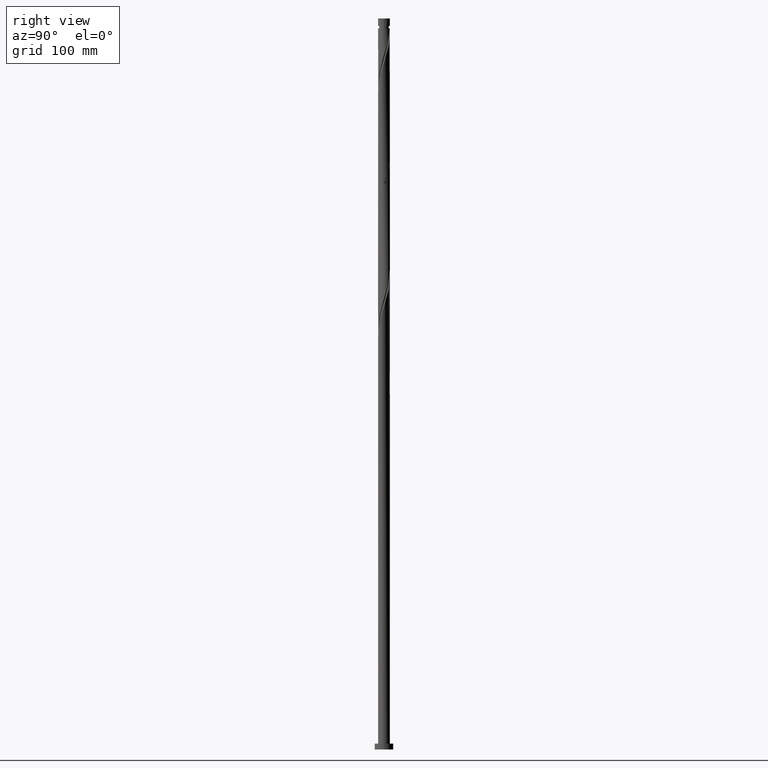
[diagram: clean part render]
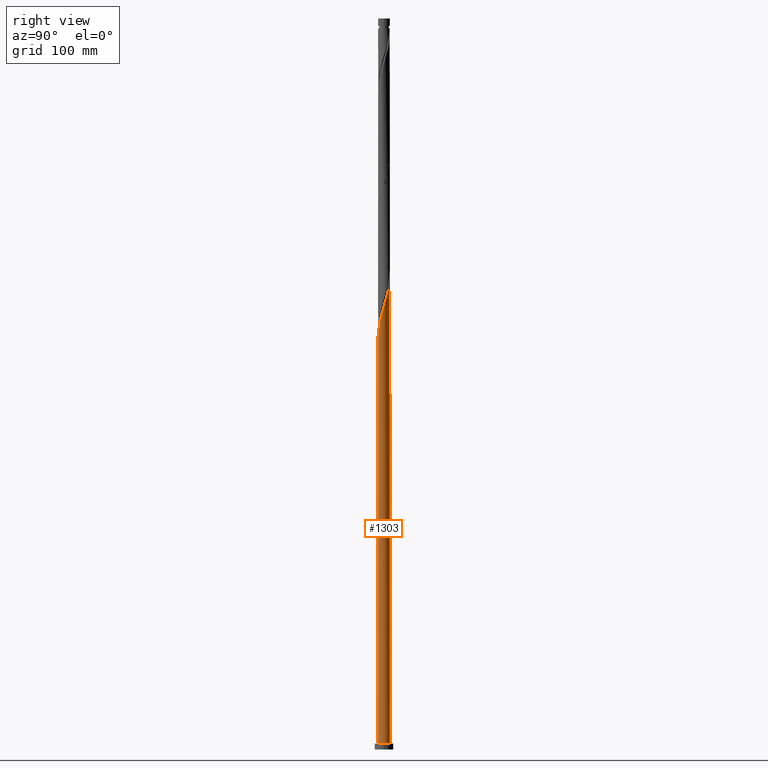
[diagram: same view with one face highlighted and labeled with its STEP entity id]
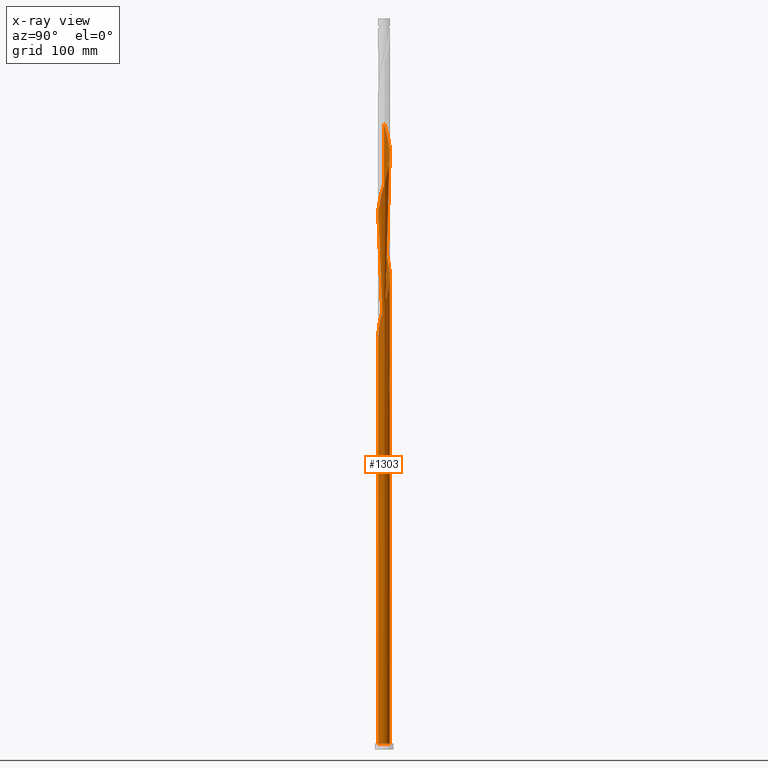
[diagram: x-ray of the same camera — body ghosted, the highlighted face saturated]
A machine part, right view. The second image highlights one B-rep face of the part: STEP entity #1303.
The next image is the same camera in x-ray: the body ghosted, the highlighted face saturated — about 0% of this face is hidden behind the body in this view.
In plain terms, the highlighted cylindrical surface (bore or boss wall) has radius 5.1 mm, axis along (-0, -0, -1).
Its self-contained STEP definition (entity closure, byte-faithful):
#7 = ORIENTED_EDGE ( 'NONE', *, *, #9, .F. ) ;
#8 = CARTESIAN_POINT ( 'NONE',  ( 4.529467502712541283, 2.343912144657106733, 389.8592863122644303 ) ) ;
#9 = EDGE_CURVE ( 'NONE', #1121, #1920, #893, .T. ) ;
#17 = CARTESIAN_POINT ( 'NONE',  ( -4.117141507260710931, 3.009841492369834892, 318.8298745475586884 ) ) ;
#18 = CARTESIAN_POINT ( 'NONE',  ( 3.149726232636926859, -4.038881139580462687, 366.6975216063819971 ) ) ;
#40 = DIRECTION ( 'NONE',  ( -1.000000000000000000, 0.000000000000000000, 0.000000000000000000 ) ) ;
#44 = CARTESIAN_POINT ( 'NONE',  ( -5.084941626442967433, 0.3916231041034358151, 538.0945804299115025 ) ) ;
#55 = AXIS2_PLACEMENT_3D ( 'NONE', #289, #1532, #752 ) ;
#60 = CARTESIAN_POINT ( 'NONE',  ( -4.804148149758898256, 1.775808760927858110, 323.4622274887349818 ) ) ;
#75 = LINE ( 'NONE', #1701, #1307 ) ;
#80 = CARTESIAN_POINT ( 'NONE',  ( 2.211504342216917607, 4.619803539608117404, 400.6681098416761984 ) ) ;
#92 = CARTESIAN_POINT ( 'NONE',  ( 3.022735951043646896, 4.134779748727644311, 397.5798745475584610 ) ) ;
#104 = CARTESIAN_POINT ( 'NONE',  ( -5.084941626442967433, 0.3916231041034358151, 433.0945804299115025 ) ) ;
#108 = CARTESIAN_POINT ( 'NONE',  ( 4.529467502712541283, 2.343912144657106733, 494.8592863122643735 ) ) ;
#125 = CARTESIAN_POINT ( 'NONE',  ( 4.600096272156573463, -2.202070454570254743, 479.4181098416761984 ) ) ;
#136 = CARTESIAN_POINT ( 'NONE',  ( -4.746662948507444746, -1.924195170320982751, 335.8151686652055332 ) ) ;
#145 = CARTESIAN_POINT ( 'NONE',  ( -3.376883931736708089, -3.821865370676797546, 343.5357569004996776 ) ) ;
#156 = ORIENTED_EDGE ( 'NONE', *, *, #506, .F. ) ;
#165 = CARTESIAN_POINT ( 'NONE',  ( -3.838238619967168752, 3.391350836527018853, 317.2857569004996776 ) ) ;
#166 = CARTESIAN_POINT ( 'NONE',  ( 4.746662948507444746, 1.924195170320982973, 388.3151686652054764 ) ) ;
#193 = CARTESIAN_POINT ( 'NONE',  ( -5.099999999999998757, 6.124884807974950042E-15, 336.0751421457819674 ) ) ;
#199 = CARTESIAN_POINT ( 'NONE',  ( -4.804148149758898256, 1.775808760927858110, 533.4622274887348112 ) ) ;
#202 = CARTESIAN_POINT ( 'NONE',  ( -0.8591317308210847381, 5.027115740570964775, 312.6534039593233842 ) ) ;
#209 = CARTESIAN_POINT ( 'NONE',  ( -3.493982426302047806, 3.715115988053740548, 525.7416392534410079 ) ) ;
#212 = CARTESIAN_POINT ( 'NONE',  ( -5.070321388801172446, 0.5494005954359167943, 334.2710510181468635 ) ) ;
#226 = CARTESIAN_POINT ( 'NONE',  ( -4.746662948507436752, 1.924195170320980086, 329.6386980769703428 ) ) ;
#254 = CARTESIAN_POINT ( 'NONE',  ( -1.324962605423095408, -4.947505461790863812, 456.2563451357937652 ) ) ;
#265 = CARTESIAN_POINT ( 'NONE',  ( 2.617120146630282473, 4.377291644167880413, 399.1239921946173581 ) ) ;
#268 = CARTESIAN_POINT ( 'NONE',  ( -4.021651984673702884, -3.136290055809592747, 445.4475216063820540 ) ) ;
#279 = CARTESIAN_POINT ( 'NONE',  ( 0.8591317308210872916, 5.027115740570972768, 405.3004627828525486 ) ) ;
#283 = CARTESIAN_POINT ( 'NONE',  ( 1.915986892950445997, -4.726414521182221939, 467.0651686652055332 ) ) ;
#285 = CARTESIAN_POINT ( 'NONE',  ( 4.804148149758898256, -1.775808760927859886, 480.9622274887349818 ) ) ;
#289 = CARTESIAN_POINT ( 'NONE',  ( 0.000000000000000000, 0.000000000000000000, 306.4769333710879096 ) ) ;
#295 = CARTESIAN_POINT ( 'NONE',  ( -5.100000000000006750, -5.676722504952354395E-15, 329.3787245963938517 ) ) ;
#298 = CARTESIAN_POINT ( 'NONE',  ( 0.3933008562190803969, 5.106726019351079948, 511.8445804299114457 ) ) ;
#302 = VERTEX_POINT ( 'NONE', #1804 ) ;
#303 = CIRCLE ( 'NONE', #55, 5.099999999999999645 ) ;
#307 = CARTESIAN_POINT ( 'NONE',  ( -4.312272056917636931, -2.763629118993231604, 338.9034039593232706 ) ) ;
#326 = CARTESIAN_POINT ( 'NONE',  ( -2.353953696134468032, 4.548872189529495458, 311.1092863122643166 ) ) ;
#350 = CARTESIAN_POINT ( 'NONE',  ( -0.3933008562190772328, 5.106726019351072843, 311.1092863122644303 ) ) ;
#355 = CARTESIAN_POINT ( 'NONE',  ( 0.000000000000000000, 0.000000000000000000, 630.0000000000000000 ) ) ;
#357 = CARTESIAN_POINT ( 'NONE',  ( -1.478020089766424405, 4.903956852834943980, 518.0210510181466361 ) ) ;
#359 = CARTESIAN_POINT ( 'NONE',  ( 1.014887185848759810, 4.997999999999998444, 306.4769333710879096 ) ) ;
#367 = ORIENTED_EDGE ( 'NONE', *, *, #841, .F. ) ;
#408 = CARTESIAN_POINT ( 'NONE',  ( -3.493982426302047806, 3.715115988053740548, 420.7416392534408374 ) ) ;
#415 = VERTEX_POINT ( 'NONE', #1334 ) ;
#420 = CARTESIAN_POINT ( 'NONE',  ( -4.926400275711511512, 1.319310548532688365, 430.0063451357938789 ) ) ;
#423 = CARTESIAN_POINT ( 'NONE',  ( -2.211504342216917163, -4.619803539608117404, 453.1681098416760847 ) ) ;
#438 = CARTESIAN_POINT ( 'NONE',  ( 0.07922671285600750568, -5.099384583258072645, 460.8886980769701154 ) ) ;
#440 = CARTESIAN_POINT ( 'NONE',  ( 5.070321388801181328, 0.5494005954359167943, 488.6828157240291262 ) ) ;
#449 = CARTESIAN_POINT ( 'NONE',  ( -0.3933008562190795643, -5.106726019351079948, 354.3445804299115025 ) ) ;
#454 = CARTESIAN_POINT ( 'NONE',  ( 1.324962605423093631, 4.947505461790864700, 508.7563451357938220 ) ) ;
#468 = CARTESIAN_POINT ( 'NONE',  ( -2.211504342216917163, -4.619803539608117404, 348.1681098416760847 ) ) ;
#472 = CARTESIAN_POINT ( 'NONE',  ( -2.751839964385697446, 4.293876664554979072, 312.6534039593232706 ) ) ;
#490 = ORIENTED_EDGE ( 'NONE', *, *, #1361, .T. ) ;
#506 = EDGE_CURVE ( 'NONE', #1258, #541, #874, .T. ) ;
#525 = CARTESIAN_POINT ( 'NONE',  ( -5.100000000000005862, 0.1961010582271915381, 538.7353188443341878 ) ) ;
#534 = CARTESIAN_POINT ( 'NONE',  ( -5.084941626442967433, 0.3916231041034358151, 328.0945804299114457 ) ) ;
#541 = VERTEX_POINT ( 'NONE', #1470 ) ;
#551 = CARTESIAN_POINT ( 'NONE',  ( -4.312272056917629826, 2.763629118993228939, 326.5504627828525486 ) ) ;
#557 = CARTESIAN_POINT ( 'NONE',  ( 1.478020089766425293, -4.903956852834943980, 465.5210510181466361 ) ) ;
#565 = CARTESIAN_POINT ( 'NONE',  ( -3.838238619967168752, 3.391350836527018853, 422.2857569004996208 ) ) ;
#569 = CARTESIAN_POINT ( 'NONE',  ( 3.493982426302048250, -3.715115988053740104, 473.2416392534409511 ) ) ;
#580 = CARTESIAN_POINT ( 'NONE',  ( -3.376883931736708089, -3.821865370676797546, 448.5357569004997345 ) ) ;
#587 = CARTESIAN_POINT ( 'NONE',  ( 3.493982426302048250, -3.715115988053740104, 368.2416392534408942 ) ) ;
#590 = CARTESIAN_POINT ( 'NONE',  ( -2.751839964385697446, 4.293876664554979072, 417.6534039593231569 ) ) ;
#594 = CARTESIAN_POINT ( 'NONE',  ( 2.617120146630282473, 4.377291644167880413, 504.1239921946173581 ) ) ;
#605 = CARTESIAN_POINT ( 'NONE',  ( 4.804148149758898256, -1.775808760927859886, 375.9622274887350954 ) ) ;
#608 = CARTESIAN_POINT ( 'NONE',  ( -2.353953696134468032, 4.548872189529495458, 416.1092863122644303 ) ) ;
#611 = CARTESIAN_POINT ( 'NONE',  ( -5.019411926380546340, -1.019235062941185932, 437.7269333710878527 ) ) ;
#613 = CARTESIAN_POINT ( 'NONE',  ( 2.211504342216917607, 4.619803539608117404, 505.6681098416759710 ) ) ;
#618 = CARTESIAN_POINT ( 'NONE',  ( 5.121230851221814540, 0.07956612793064861411, 382.1386980769702859 ) ) ;
#647 = CARTESIAN_POINT ( 'NONE',  ( -1.478020089766424405, 4.903956852834943980, 308.0210510181466930 ) ) ;
#648 = CARTESIAN_POINT ( 'NONE',  ( 4.312272056917638707, 2.763629118993229827, 391.4034039593231000 ) ) ;
#656 = CARTESIAN_POINT ( 'NONE',  ( -4.600096272156573463, 2.202070454570254299, 321.9181098416761984 ) ) ;
#668 = CARTESIAN_POINT ( 'NONE',  ( -5.019411926380538347, 1.019235062941185488, 332.7269333710877959 ) ) ;
#676 = CARTESIAN_POINT ( 'NONE',  ( 0.000000000000000000, 0.000000000000000000, 5.000000000000000000 ) ) ;
#680 = CARTESIAN_POINT ( 'NONE',  ( -2.751839964385697446, 4.293876664554979072, 522.6534039593231000 ) ) ;
#692 = CARTESIAN_POINT ( 'NONE',  ( -4.117141507260710931, 3.009841492369834892, 528.8298745475584610 ) ) ;
#699 = CARTESIAN_POINT ( 'NONE',  ( 0.000000000000000000, 0.000000000000000000, 5.000000000000000000 ) ) ;
#700 = CARTESIAN_POINT ( 'NONE',  ( -5.048652401664122991, 0.8628123361375193978, 326.5504627828525486 ) ) ;
#726 = CARTESIAN_POINT ( 'NONE',  ( -3.731031912429765729, -3.508950992625955223, 446.9916392534409511 ) ) ;
#735 = CARTESIAN_POINT ( 'NONE',  ( -0.07922671285600897673, 5.099384583258072645, 408.3886980769702859 ) ) ;
#746 = CARTESIAN_POINT ( 'NONE',  ( 0.5517542819310949920, -5.092043147165065342, 462.4328157240290693 ) ) ;
#748 = CARTESIAN_POINT ( 'NONE',  ( 4.021651984673701996, 3.136290055809593635, 497.9475216063819403 ) ) ;
#752 = DIRECTION ( 'NONE',  ( -1.000000000000000000, 0.000000000000000000, 0.000000000000000000 ) ) ;
#760 = CARTESIAN_POINT ( 'NONE',  ( 5.019411926380546340, 1.019235062941185044, 490.2269333710879664 ) ) ;
#767 = CARTESIAN_POINT ( 'NONE',  ( 0.5517542819310949920, -5.092043147165065342, 357.4328157240290125 ) ) ;
#777 = CARTESIAN_POINT ( 'NONE',  ( -3.022735951043648228, -4.134779748727643423, 345.0798745475584042 ) ) ;
#804 = CARTESIAN_POINT ( 'NONE',  ( -1.014887185848758255, 4.998000000000006438, 306.4769333710880233 ) ) ;
#805 = CARTESIAN_POINT ( 'NONE',  ( 1.478020089766425293, -4.903956852834943980, 360.5210510181468635 ) ) ;
#823 = CARTESIAN_POINT ( 'NONE',  ( -3.376883931736701872, 3.821865370676793994, 321.9181098416761415 ) ) ;
#828 = CARTESIAN_POINT ( 'NONE',  ( -5.099999999999999645, 0.000000000000000000, 630.0000000000000000 ) ) ;
#831 = CARTESIAN_POINT ( 'NONE',  ( -5.048652401664122991, 0.8628123361375193978, 536.5504627828526054 ) ) ;
#838 = ORIENTED_EDGE ( 'NONE', *, *, #943, .T. ) ;
#841 = EDGE_CURVE ( 'NONE', #1920, #1258, #1956, .T. ) ;
#856 = DIRECTION ( 'NONE',  ( -0.000000000000000000, -0.000000000000000000, -1.000000000000000000 ) ) ;
#868 = ORIENTED_EDGE ( 'NONE', *, *, #1203, .T. ) ;
#874 = LINE ( 'NONE', #828, #1045 ) ;
#886 = CIRCLE ( 'NONE', #1170, 5.099999999999999645 ) ;
#893 =( BOUNDED_CURVE ( )  B_SPLINE_CURVE ( 2, ( #804, #647, #1898, #326, #472, #1750, #1623, #165, #17, #1952, #656, #60, #1918, #700, #534, #1740, #1759 ),
 .UNSPECIFIED., .F., .T. ) 
 B_SPLINE_CURVE_WITH_KNOTS ( ( 3, 2, 2, 2, 2, 2, 2, 2, 3 ),
 ( 0.000000000000000000, 0.007352941176470562112, 0.01470588235294112422, 0.02205882352941179736, 0.02941176470588235947, 0.03676470588235292158, 0.04411764705882348370, 0.05147058823529414989, 0.05452935731629051513 ),
 .UNSPECIFIED. ) 
 CURVE ( )  GEOMETRIC_REPRESENTATION_ITEM ( )  RATIONAL_B_SPLINE_CURVE ( ( 0.9090909090909647938, 0.9052128875409960473, 0.9090909090909647938, 0.9052128875409960473, 0.9090909090909647938, 0.9052128875409960473, 0.9090909090909647938, 0.9052128875409960473, 0.9090909090909647938, 0.9052128875409960473, 0.9090909090909647938, 0.9052128875409960473, 0.9090909090909647938, 0.9052128875409960473, 0.9090909090909647938, 0.9074776808428672847, 0.9072066346053264674 ) ) 
 REPRESENTATION_ITEM ( '' )  );
#897 = CARTESIAN_POINT ( 'NONE',  ( -0.8591317308210866255, -5.027115740570972768, 457.8004627828526623 ) ) ;
#900 = CARTESIAN_POINT ( 'NONE',  ( 5.048652401664122991, -0.8628123361375190647, 484.0504627828525486 ) ) ;
#906 = CARTESIAN_POINT ( 'NONE',  ( -0.8591317308210866255, -5.027115740570972768, 352.8004627828527191 ) ) ;
#911 = CARTESIAN_POINT ( 'NONE',  ( 2.353953696134468032, -4.548872189529495458, 468.6092863122643735 ) ) ;
#913 = CARTESIAN_POINT ( 'NONE',  ( 3.838238619967167864, -3.391350836527018853, 474.7857569004997345 ) ) ;
#922 = CARTESIAN_POINT ( 'NONE',  ( 5.084941626442967433, -0.3916231041034375360, 380.5945804299115025 ) ) ;
#925 = CARTESIAN_POINT ( 'NONE',  ( -5.070321388801181328, -0.5494005954359160171, 331.1828157240290125 ) ) ;
#929 = CARTESIAN_POINT ( 'NONE',  ( 5.121230851221814540, 0.07956612793064861411, 487.1386980769702291 ) ) ;
#937 = CARTESIAN_POINT ( 'NONE',  ( -4.021651984673702884, -3.136290055809592747, 340.4475216063820540 ) ) ;
#943 = EDGE_CURVE ( 'NONE', #1121, #302, #303, .T. ) ;
#981 = CARTESIAN_POINT ( 'NONE',  ( -3.022735951043643787, 4.134779748727637205, 320.3739921946173013 ) ) ;
#996 = CARTESIAN_POINT ( 'NONE',  ( -0.5517542819310943258, 5.092043147165065342, 514.9328157240290693 ) ) ;
#1022 = DIRECTION ( 'NONE',  ( 0.000000000000000000, 0.000000000000000000, 1.000000000000000000 ) ) ;
#1023 = CARTESIAN_POINT ( 'NONE',  ( 1.768233473820008728, 4.783654500699490164, 402.2122274887349818 ) ) ;
#1034 = CARTESIAN_POINT ( 'NONE',  ( -3.149726232636926859, 4.038881139580462687, 419.1975216063819971 ) ) ;
#1045 = VECTOR ( 'NONE', #1976, 1000.000000000000000 ) ;
#1048 = CARTESIAN_POINT ( 'NONE',  ( -5.070321388801181328, -0.5494005954359160171, 436.1828157240291830 ) ) ;
#1062 = CARTESIAN_POINT ( 'NONE',  ( 4.117141507260710931, -3.009841492369834892, 476.3298745475585179 ) ) ;
#1076 = CARTESIAN_POINT ( 'NONE',  ( 4.883037437443995543, 1.471715116631081566, 491.7710510181466930 ) ) ;
#1103 = CARTESIAN_POINT ( 'NONE',  ( 5.019411926380546340, 1.019235062941185044, 385.2269333710878527 ) ) ;
#1111 = DIRECTION ( 'NONE',  ( 1.000000000000000000, 0.000000000000000000, 0.000000000000000000 ) ) ;
#1121 = VERTEX_POINT ( 'NONE', #1518 ) ;
#1136 = FACE_OUTER_BOUND ( 'NONE', #1242, .T. ) ;
#1138 = CARTESIAN_POINT ( 'NONE',  ( -4.396044394554250445, 2.628332148212650932, 530.3739921946173581 ) ) ;
#1148 = CARTESIAN_POINT ( 'NONE',  ( -1.915986892950446885, 4.726414521182221939, 519.5651686652056469 ) ) ;
#1150 = CARTESIAN_POINT ( 'NONE',  ( -1.768233473820002510, 4.783654500699486611, 315.7416392534408374 ) ) ;
#1170 = AXIS2_PLACEMENT_3D ( 'NONE', #699, #1022, #1305 ) ;
#1173 = CARTESIAN_POINT ( 'NONE',  ( 3.731031912429765729, 3.508950992625953891, 394.4916392534408942 ) ) ;
#1177 = CARTESIAN_POINT ( 'NONE',  ( 3.149726232636926859, -4.038881139580462687, 471.6975216063819403 ) ) ;
#1185 = CARTESIAN_POINT ( 'NONE',  ( -4.600096272156573463, 2.202070454570254299, 426.9181098416761415 ) ) ;
#1197 = CARTESIAN_POINT ( 'NONE',  ( -4.117141507260710931, 3.009841492369834892, 423.8298745475584610 ) ) ;
#1203 = EDGE_CURVE ( 'NONE', #1920, #415, #75, .T. ) ;
#1204 = VERTEX_POINT ( 'NONE', #1328 ) ;
#1212 = CARTESIAN_POINT ( 'NONE',  ( -5.121230851221814540, -0.07956612793064668510, 434.6386980769702291 ) ) ;
#1223 = CARTESIAN_POINT ( 'NONE',  ( 4.926400275711511512, -1.319310548532686367, 377.5063451357937652 ) ) ;
#1227 = CARTESIAN_POINT ( 'NONE',  ( 2.751839964385698778, -4.293876664554978184, 470.1534039593232137 ) ) ;
#1230 = CARTESIAN_POINT ( 'NONE',  ( 1.768233473820008728, 4.783654500699490164, 507.2122274887350954 ) ) ;
#1235 = CARTESIAN_POINT ( 'NONE',  ( 5.070321388801181328, 0.5494005954359167943, 383.6828157240290693 ) ) ;
#1242 = EDGE_LOOP ( 'NONE', ( #156, #367, #868, #490, #1396, #1823, #7, #838, #1352 ) ) ;
#1258 = VERTEX_POINT ( 'NONE', #1595 ) ;
#1266 = CARTESIAN_POINT ( 'NONE',  ( 1.014887185848758699, -4.998000000000006438, 358.9769333710879664 ) ) ;
#1287 = CARTESIAN_POINT ( 'NONE',  ( -5.099999999999997868, 0.2755019167642603350, 335.1712229137692134 ) ) ;
#1294 = CARTESIAN_POINT ( 'NONE',  ( -0.07922671285600897673, 5.099384583258072645, 513.3886980769703996 ) ) ;
#1302 = CARTESIAN_POINT ( 'NONE',  ( -4.926400275711511512, 1.319310548532688365, 535.0063451357939357 ) ) ;
#1303 = ADVANCED_FACE ( 'NONE', ( #1136 ), #1773, .T. ) ;
#1305 = DIRECTION ( 'NONE',  ( 1.000000000000000000, 0.000000000000000000, 0.000000000000000000 ) ) ;
#1307 = VECTOR ( 'NONE', #856, 1000.000000000000000 ) ;
#1328 = CARTESIAN_POINT ( 'NONE',  ( 5.099999999999999645, 0.000000000000000000, 5.000000000000000000 ) ) ;
#1330 = CARTESIAN_POINT ( 'NONE',  ( -4.021651984673694891, 3.136290055809589639, 325.0063451357937652 ) ) ;
#1334 = CARTESIAN_POINT ( 'NONE',  ( -5.099999999999999645, 0.000000000000000000, 5.000000000000000000 ) ) ;
#1343 = CARTESIAN_POINT ( 'NONE',  ( -0.5517542819310943258, 5.092043147165065342, 409.9328157240290693 ) ) ;
#1348 = CARTESIAN_POINT ( 'NONE',  ( -2.617120146630283806, -4.377291644167880413, 451.6239921946174150 ) ) ;
#1352 = ORIENTED_EDGE ( 'NONE', *, *, #2029, .F. ) ;
#1356 = CARTESIAN_POINT ( 'NONE',  ( -4.883037437443995543, -1.471715116631083564, 334.2710510181468067 ) ) ;
#1361 = EDGE_CURVE ( 'NONE', #415, #1204, #1411, .T. ) ;
#1376 = CARTESIAN_POINT ( 'NONE',  ( 4.396044394554250445, -2.628332148212650488, 372.8739921946173013 ) ) ;
#1379 = CARTESIAN_POINT ( 'NONE',  ( 3.376883931736709421, 3.821865370676797546, 396.0357569004996776 ) ) ;
#1383 = CARTESIAN_POINT ( 'NONE',  ( 4.746662948507444746, 1.924195170320982973, 493.3151686652056469 ) ) ;
#1396 = ORIENTED_EDGE ( 'NONE', *, *, #1568, .T. ) ;
#1400 = CARTESIAN_POINT ( 'NONE',  ( -2.617120146630283806, -4.377291644167880413, 346.6239921946172444 ) ) ;
#1411 = CIRCLE ( 'NONE', #1437, 5.099999999999999645 ) ;
#1429 = CARTESIAN_POINT ( 'NONE',  ( 2.353953696134468032, -4.548872189529495458, 363.6092863122642598 ) ) ;
#1437 = AXIS2_PLACEMENT_3D ( 'NONE', #676, #1545, #1111 ) ;
#1451 = DIRECTION ( 'NONE',  ( -0.000000000000000000, -0.000000000000000000, -1.000000000000000000 ) ) ;
#1456 = CARTESIAN_POINT ( 'NONE',  ( -4.529467502712533289, 2.343912144657103624, 328.0945804299115025 ) ) ;
#1464 = CARTESIAN_POINT ( 'NONE',  ( -3.838238619967168752, 3.391350836527018853, 527.2857569004995639 ) ) ;
#1465 = AXIS2_PLACEMENT_3D ( 'NONE', #355, #1451, #40 ) ;
#1470 = CARTESIAN_POINT ( 'NONE',  ( -5.099999999999998757, 6.124884807974950831E-15, 336.0751421457819674 ) ) ;
#1490 = CARTESIAN_POINT ( 'NONE',  ( -4.883037437443995543, -1.471715116631083564, 439.2710510181467498 ) ) ;
#1511 = CARTESIAN_POINT ( 'NONE',  ( -5.048652401664122991, 0.8628123361375193978, 431.5504627828525486 ) ) ;
#1515 = CARTESIAN_POINT ( 'NONE',  ( 4.926400275711511512, -1.319310548532686367, 482.5063451357938220 ) ) ;
#1518 = CARTESIAN_POINT ( 'NONE',  ( -1.014887185848758255, 4.998000000000006438, 306.4769333710879096 ) ) ;
#1529 = CARTESIAN_POINT ( 'NONE',  ( 4.312272056917638707, 2.763629118993229827, 496.4034039593232137 ) ) ;
#1532 = DIRECTION ( 'NONE',  ( 0.000000000000000000, -0.000000000000000000, -1.000000000000000000 ) ) ;
#1537 = CARTESIAN_POINT ( 'NONE',  ( 2.751839964385698778, -4.293876664554978184, 365.1534039593232706 ) ) ;
#1542 = CARTESIAN_POINT ( 'NONE',  ( -5.019411926380546340, -1.019235062941185932, 332.7269333710879664 ) ) ;
#1545 = DIRECTION ( 'NONE',  ( 0.000000000000000000, 0.000000000000000000, 1.000000000000000000 ) ) ;
#1552 = CARTESIAN_POINT ( 'NONE',  ( -3.731031912429765729, -3.508950992625955223, 341.9916392534408374 ) ) ;
#1568 = EDGE_CURVE ( 'NONE', #1204, #415, #886, .T. ) ;
#1580 = CARTESIAN_POINT ( 'NONE',  ( 0.07922671285600750568, -5.099384583258072645, 355.8886980769703996 ) ) ;
#1592 = CARTESIAN_POINT ( 'NONE',  ( -3.731031912429758624, 3.508950992625949006, 323.4622274887350386 ) ) ;
#1595 = CARTESIAN_POINT ( 'NONE',  ( -5.100000000000008527, -2.718851305003497173E-15, 539.3787245963939085 ) ) ;
#1599 = CARTESIAN_POINT ( 'NONE',  ( 0.07922671285600824120, 5.099384583258064652, 309.5651686652056469 ) ) ;
#1606 = CARTESIAN_POINT ( 'NONE',  ( -4.600096272156573463, 2.202070454570254299, 531.9181098416761415 ) ) ;
#1623 = CARTESIAN_POINT ( 'NONE',  ( -3.493982426302047806, 3.715115988053740548, 315.7416392534408374 ) ) ;
#1663 = CARTESIAN_POINT ( 'NONE',  ( -4.804148149758898256, 1.775808760927858110, 428.4622274887349818 ) ) ;
#1667 = CARTESIAN_POINT ( 'NONE',  ( -0.3933008562190795643, -5.106726019351079948, 459.3445804299113320 ) ) ;
#1686 = CARTESIAN_POINT ( 'NONE',  ( 4.117141507260710931, -3.009841492369834892, 371.3298745475585747 ) ) ;
#1689 = CARTESIAN_POINT ( 'NONE',  ( 1.324962605423093631, 4.947505461790864700, 403.7563451357937083 ) ) ;
#1694 = CARTESIAN_POINT ( 'NONE',  ( 1.014887185848758699, -4.998000000000006438, 463.9769333710878527 ) ) ;
#1697 = CARTESIAN_POINT ( 'NONE',  ( 5.084941626442967433, -0.3916231041034375360, 485.5945804299114457 ) ) ;
#1701 = CARTESIAN_POINT ( 'NONE',  ( -5.099999999999999645, 0.000000000000000000, 630.0000000000000000 ) ) ;
#1710 = CARTESIAN_POINT ( 'NONE',  ( -5.100000000000007638, -0.2755019167642540623, 330.2826438284065489 ) ) ;
#1713 = CARTESIAN_POINT ( 'NONE',  ( 0.8591317308210872916, 5.027115740570972768, 510.3004627828526623 ) ) ;
#1740 = CARTESIAN_POINT ( 'NONE',  ( -5.100000000000007638, 0.1961010582271760228, 328.7353188443341310 ) ) ;
#1741 = CARTESIAN_POINT ( 'NONE',  ( 4.883037437443995543, 1.471715116631081566, 386.7710510181466930 ) ) ;
#1750 = CARTESIAN_POINT ( 'NONE',  ( -3.149726232636926859, 4.038881139580462687, 314.1975216063821108 ) ) ;
#1751 = CARTESIAN_POINT ( 'NONE',  ( 1.915986892950445997, -4.726414521182221939, 362.0651686652054764 ) ) ;
#1759 = CARTESIAN_POINT ( 'NONE',  ( -5.100000000000006750, -5.676722504952354395E-15, 329.3787245963938517 ) ) ;
#1773 = CYLINDRICAL_SURFACE ( 'NONE', #1465, 5.099999999999999645 ) ;
#1776 = CARTESIAN_POINT ( 'NONE',  ( -3.149726232636926859, 4.038881139580462687, 524.1975216063819971 ) ) ;
#1786 = CARTESIAN_POINT ( 'NONE',  ( -2.353953696134468032, 4.548872189529495458, 521.1092863122643166 ) ) ;
#1788 = CARTESIAN_POINT ( 'NONE',  ( -4.883037437443988438, 1.471715116631082232, 331.1828157240291830 ) ) ;
#1800 = CARTESIAN_POINT ( 'NONE',  ( -2.617120146630278921, 4.377291644167875084, 318.8298745475585747 ) ) ;
#1804 = CARTESIAN_POINT ( 'NONE',  ( 1.014887185848759810, 4.997999999999998444, 306.4769333710879096 ) ) ;
#1818 = CARTESIAN_POINT ( 'NONE',  ( -4.746662948507444746, -1.924195170320982751, 440.8151686652055332 ) ) ;
#1823 = ORIENTED_EDGE ( 'NONE', *, *, #1203, .F. ) ;
#1827 = CARTESIAN_POINT ( 'NONE',  ( -1.915986892950446885, 4.726414521182221939, 414.5651686652055901 ) ) ;
#1850 = CARTESIAN_POINT ( 'NONE',  ( 3.838238619967167864, -3.391350836527018853, 369.7857569004996776 ) ) ;
#1855 = CARTESIAN_POINT ( 'NONE',  ( -4.529467502712541283, -2.343912144657107177, 442.3592863122644303 ) ) ;
#1857 = CARTESIAN_POINT ( 'NONE',  ( 3.376883931736709421, 3.821865370676797546, 501.0357569004996208 ) ) ;
#1860 = CARTESIAN_POINT ( 'NONE',  ( -5.100000000000008527, -2.718851305003496779E-15, 539.3787245963939085 ) ) ;
#1869 = CARTESIAN_POINT ( 'NONE',  ( 4.396044394554250445, -2.628332148212650488, 477.8739921946172444 ) ) ;
#1872 =( BOUNDED_CURVE ( )  B_SPLINE_CURVE ( 2, ( #193, #1287, #212, #668, #1788, #226, #1456, #551, #1330, #1592, #823, #981, #1800, #1970, #1150, #1929, #202, #350, #1599, #1936, #359 ),
 .UNSPECIFIED., .F., .T. ) 
 B_SPLINE_CURVE_WITH_KNOTS ( ( 3, 2, 2, 2, 2, 2, 2, 2, 2, 2, 3 ),
 ( 0.9295293573162906053, 0.9338235294117647189, 0.9411764705882352811, 0.9485294117647058432, 0.9558823529411765163, 0.9632352941176470784, 0.9705882352941176405, 0.9779411764705882026, 0.9852941176470588758, 0.9926470588235294379, 1.000000000000000000 ),
 .UNSPECIFIED. ) 
 CURVE ( )  GEOMETRIC_REPRESENTATION_ITEM ( )  RATIONAL_B_SPLINE_CURVE ( ( 0.9072066346053202501, 0.9068261157890875612, 0.9090909090909587986, 0.9052128875409900521, 0.9090909090909587986, 0.9052128875409900521, 0.9090909090909587986, 0.9052128875409900521, 0.9090909090909587986, 0.9052128875409900521, 0.9090909090909587986, 0.9052128875409900521, 0.9090909090909587986, 0.9052128875409900521, 0.9090909090909587986, 0.9052128875409900521, 0.9090909090909587986, 0.9052128875409900521, 0.9090909090909587986, 0.9052128875409900521, 0.9090909090909587986 ) ) 
 REPRESENTATION_ITEM ( '' )  );
#1894 = CARTESIAN_POINT ( 'NONE',  ( -1.324962605423095408, -4.947505461790863812, 351.2563451357937652 ) ) ;
#1898 = CARTESIAN_POINT ( 'NONE',  ( -1.915986892950446885, 4.726414521182221939, 309.5651686652054764 ) ) ;
#1908 = CARTESIAN_POINT ( 'NONE',  ( 4.021651984673701996, 3.136290055809593635, 392.9475216063819403 ) ) ;
#1918 = CARTESIAN_POINT ( 'NONE',  ( -4.926400275711511512, 1.319310548532688365, 325.0063451357937652 ) ) ;
#1920 = VERTEX_POINT ( 'NONE', #2000 ) ;
#1929 = CARTESIAN_POINT ( 'NONE',  ( -1.324962605423092077, 4.947505461790856707, 314.1975216063819971 ) ) ;
#1934 = CARTESIAN_POINT ( 'NONE',  ( -1.014887185848758255, 4.998000000000006438, 516.4769333710878527 ) ) ;
#1936 = CARTESIAN_POINT ( 'NONE',  ( 0.5517542819310938818, 5.092043147165057349, 308.0210510181466361 ) ) ;
#1952 = CARTESIAN_POINT ( 'NONE',  ( -4.396044394554250445, 2.628332148212650932, 320.3739921946173013 ) ) ;
#1956 =( BOUNDED_CURVE ( )  B_SPLINE_CURVE ( 2, ( #295, #1710, #925, #1542, #1356, #136, #2049, #307, #937, #1552, #145, #777, #1400, #468, #2006, #1894, #906, #449, #1580, #767, #1266, #805, #1751, #1429, #1537, #18, #587, #1850, #1686, #1376, #2033, #605, #1223, #2046, #922, #618, #1235, #1103, #1741, #166, #8, #648, #1908, #1173, #1379, #92, #265, #80, #1023, #1689, #279, #2019, #735, #1343, #1991, #1974, #1827, #608, #590, #1034, #408, #565, #1197, #2004, #1185, #1663, #420, #1511, #104, #1212, #1048, #611, #1490, #1818, #1855, #2037, #268, #726, #580, #1979, #1348, #423, #1995, #254, #897, #1667, #438, #746, #1694, #557, #283, #911, #1227, #1177, #569, #913, #1062, #1869, #125, #285, #1515, #900, #1697, #929, #440, #760, #1076, #1383, #108, #1529, #748, #2023, #1857, #2039, #594, #613, #1230, #454, #1713, #298, #1294, #996, #1934, #357, #1148, #1786, #680, #1776, #209, #1464, #692, #1138, #1606, #199, #1302, #831, #44, #525, #1860 ),
 .UNSPECIFIED., .F., .T. ) 
 B_SPLINE_CURVE_WITH_KNOTS ( ( 3, 2, 2, 2, 2, 2, 2, 2, 2, 2, 2, 2, 2, 2, 2, 2, 2, 2, 2, 2, 2, 2, 2, 2, 2, 2, 2, 2, 2, 2, 2, 2, 2, 2, 2, 2, 2, 2, 2, 2, 2, 2, 2, 2, 2, 2, 2, 2, 2, 2, 2, 2, 2, 2, 2, 2, 2, 2, 2, 2, 2, 2, 2, 2, 2, 2, 2, 2, 2, 3 ),
 ( 0.05452935731629051513, 0.05882352941176471894, 0.06617647058823528106, 0.07352941176470584317, 0.08088235294117651630, 0.08823529411764707842, 0.09558823529411764053, 0.1029411764705882026, 0.1102941176470588758, 0.1176470588235294379, 0.1250000000000000000, 0.1323529411764705621, 0.1397058823529411242, 0.1470588235294117974, 0.1544117647058823595, 0.1617647058823529216, 0.1691176470588234837, 0.1764705882352941568, 0.1838235294117647189, 0.1911764705882352811, 0.1985294117647058432, 0.2058823529411765163, 0.2132352941176470784, 0.2205882352941176405, 0.2279411764705882026, 0.2352941176470588758, 0.2426470588235294379, 0.2500000000000000000, 0.2573529411764705621, 0.2647058823529411242, 0.2720588235294117974, 0.2794117647058823595, 0.2867647058823529216, 0.2941176470588234837, 0.3014705882352941568, 0.3088235294117647189, 0.3161764705882352811, 0.3235294117647058432, 0.3308823529411765163, 0.3382352941176470784, 0.3455882352941176405, 0.3529411764705882026, 0.3602941176470588758, 0.3676470588235294379, 0.3750000000000000000, 0.3823529411764705621, 0.3897058823529411242, 0.3970588235294117974, 0.4044117647058823595, 0.4117647058823529216, 0.4191176470588234837, 0.4264705882352941568, 0.4338235294117647189, 0.4411764705882352811, 0.4485294117647058432, 0.4558823529411765163, 0.4632352941176470784, 0.4705882352941176405, 0.4779411764705882026, 0.4852941176470588758, 0.4926470588235294379, 0.5000000000000000000, 0.5073529411764705621, 0.5147058823529411242, 0.5220588235294116863, 0.5294117647058823595, 0.5367647058823529216, 0.5441176470588235947, 0.5514705882352941568, 0.5545293573162902723 ),
 .UNSPECIFIED. ) 
 CURVE ( )  GEOMETRIC_REPRESENTATION_ITEM ( )  RATIONAL_B_SPLINE_CURVE ( ( 0.9072066346053264674, 0.9068261157890935564, 0.9090909090909647938, 0.9052128875409960473, 0.9090909090909647938, 0.9052128875409960473, 0.9090909090909647938, 0.9052128875409960473, 0.9090909090909647938, 0.9052128875409960473, 0.9090909090909647938, 0.9052128875409960473, 0.9090909090909647938, 0.9052128875409960473, 0.9090909090909647938, 0.9052128875409960473, 0.9090909090909647938, 0.9052128875409960473, 0.9090909090909647938, 0.9052128875409960473, 0.9090909090909647938, 0.9052128875409960473, 0.9090909090909647938, 0.9052128875409960473, 0.9090909090909647938, 0.9052128875409960473, 0.9090909090909647938, 0.9052128875409960473, 0.9090909090909647938, 0.9052128875409960473, 0.9090909090909647938, 0.9052128875409960473, 0.9090909090909647938, 0.9052128875409960473, 0.9090909090909647938, 0.9052128875409960473, 0.9090909090909647938, 0.9052128875409960473, 0.9090909090909647938, 0.9052128875409960473, 0.9090909090909647938, 0.9052128875409960473, 0.9090909090909647938, 0.9052128875409960473, 0.9090909090909647938, 0.9052128875409960473, 0.9090909090909647938, 0.9052128875409960473, 0.9090909090909647938, 0.9052128875409960473, 0.9090909090909647938, 0.9052128875409960473, 0.9090909090909647938, 0.9052128875409960473, 0.9090909090909647938, 0.9052128875409960473, 0.9090909090909647938, 0.9052128875409960473, 0.9090909090909647938, 0.9052128875409960473, 0.9090909090909647938, 0.9052128875409960473, 0.9090909090909647938, 0.9052128875409960473, 0.9090909090909647938, 0.9052128875409960473, 0.9090909090909647938, 0.9052128875409960473, 0.9090909090909647938, 0.9052128875409960473, 0.9090909090909647938, 0.9052128875409960473, 0.9090909090909647938, 0.9052128875409960473, 0.9090909090909647938, 0.9052128875409960473, 0.9090909090909647938, 0.9052128875409960473, 0.9090909090909647938, 0.9052128875409960473, 0.9090909090909647938, 0.9052128875409960473, 0.9090909090909647938, 0.9052128875409960473, 0.9090909090909647938, 0.9052128875409960473, 0.9090909090909647938, 0.9052128875409960473, 0.9090909090909647938, 0.9052128875409960473, 0.9090909090909647938, 0.9052128875409960473, 0.9090909090909647938, 0.9052128875409960473, 0.9090909090909647938, 0.9052128875409960473, 0.9090909090909647938, 0.9052128875409960473, 0.9090909090909647938, 0.9052128875409960473, 0.9090909090909647938, 0.9052128875409960473, 0.9090909090909647938, 0.9052128875409960473, 0.9090909090909647938, 0.9052128875409960473, 0.9090909090909647938, 0.9052128875409960473, 0.9090909090909647938, 0.9052128875409960473, 0.9090909090909647938, 0.9052128875409960473, 0.9090909090909647938, 0.9052128875409960473, 0.9090909090909647938, 0.9052128875409960473, 0.9090909090909647938, 0.9052128875409960473, 0.9090909090909647938, 0.9052128875409960473, 0.9090909090909647938, 0.9052128875409960473, 0.9090909090909647938, 0.9052128875409960473, 0.9090909090909647938, 0.9052128875409960473, 0.9090909090909647938, 0.9052128875409960473, 0.9090909090909647938, 0.9052128875409960473, 0.9090909090909647938, 0.9052128875409960473, 0.9090909090909647938, 0.9052128875409960473, 0.9090909090909647938, 0.9052128875409960473, 0.9090909090909647938, 0.9074776808428672847, 0.9072066346053263564 ) ) 
 REPRESENTATION_ITEM ( '' )  );
#1970 = CARTESIAN_POINT ( 'NONE',  ( -2.211504342216914054, 4.619803539608112075, 317.2857569004997913 ) ) ;
#1974 = CARTESIAN_POINT ( 'NONE',  ( -1.478020089766424405, 4.903956852834943980, 413.0210510181467498 ) ) ;
#1976 = DIRECTION ( 'NONE',  ( -0.000000000000000000, -0.000000000000000000, -1.000000000000000000 ) ) ;
#1979 = CARTESIAN_POINT ( 'NONE',  ( -3.022735951043648228, -4.134779748727643423, 450.0798745475585179 ) ) ;
#1991 = CARTESIAN_POINT ( 'NONE',  ( -1.014887185848758255, 4.998000000000006438, 411.4769333710879664 ) ) ;
#1995 = CARTESIAN_POINT ( 'NONE',  ( -1.768233473820006063, -4.783654500699491940, 454.7122274887349249 ) ) ;
#2000 = CARTESIAN_POINT ( 'NONE',  ( -5.100000000000006750, -5.676722504952355184E-15, 329.3787245963938517 ) ) ;
#2004 = CARTESIAN_POINT ( 'NONE',  ( -4.396044394554250445, 2.628332148212650932, 425.3739921946173013 ) ) ;
#2006 = CARTESIAN_POINT ( 'NONE',  ( -1.768233473820006063, -4.783654500699491940, 349.7122274887350954 ) ) ;
#2019 = CARTESIAN_POINT ( 'NONE',  ( 0.3933008562190803969, 5.106726019351079948, 406.8445804299113888 ) ) ;
#2023 = CARTESIAN_POINT ( 'NONE',  ( 3.731031912429765729, 3.508950992625953891, 499.4916392534408374 ) ) ;
#2029 = EDGE_CURVE ( 'NONE', #541, #302, #1872, .T. ) ;
#2033 = CARTESIAN_POINT ( 'NONE',  ( 4.600096272156573463, -2.202070454570254743, 374.4181098416761984 ) ) ;
#2037 = CARTESIAN_POINT ( 'NONE',  ( -4.312272056917636931, -2.763629118993231604, 443.9034039593231000 ) ) ;
#2039 = CARTESIAN_POINT ( 'NONE',  ( 3.022735951043646896, 4.134779748727644311, 502.5798745475583473 ) ) ;
#2046 = CARTESIAN_POINT ( 'NONE',  ( 5.048652401664122991, -0.8628123361375190647, 379.0504627828526623 ) ) ;
#2049 = CARTESIAN_POINT ( 'NONE',  ( -4.529467502712541283, -2.343912144657107177, 337.3592863122643166 ) ) ;